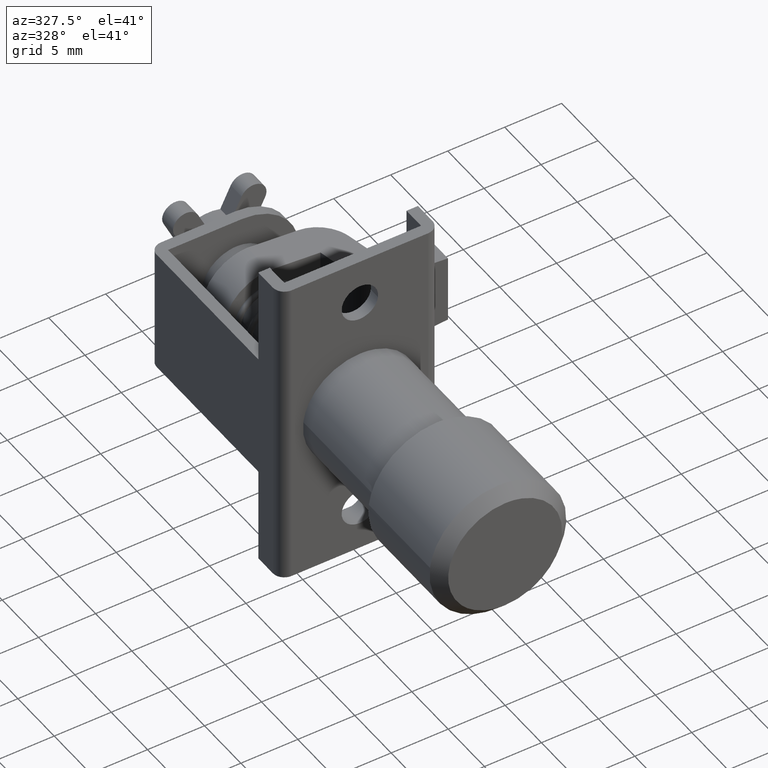
[diagram: clean part render]
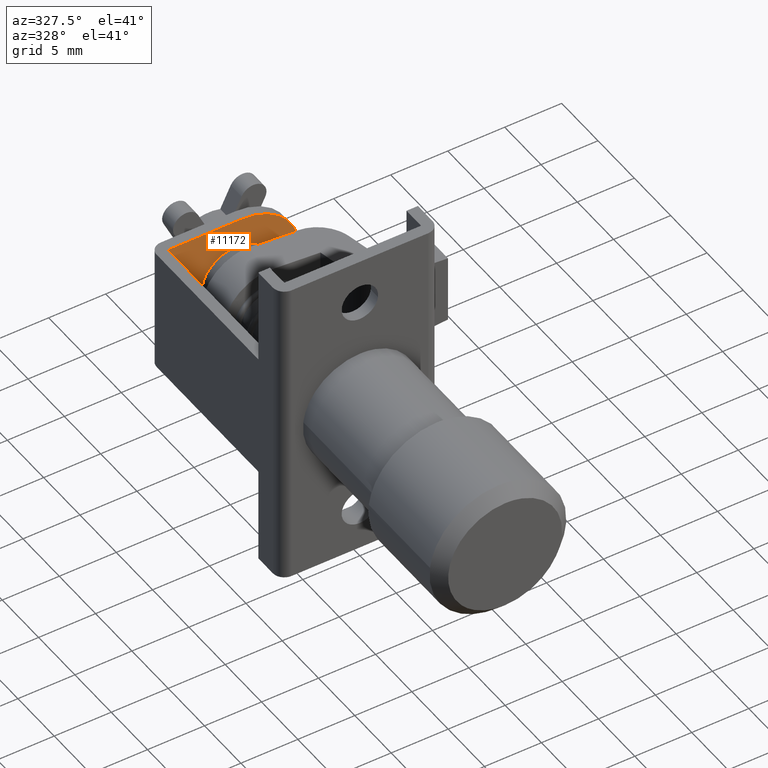
[diagram: same view with one face highlighted and labeled with its STEP entity id]
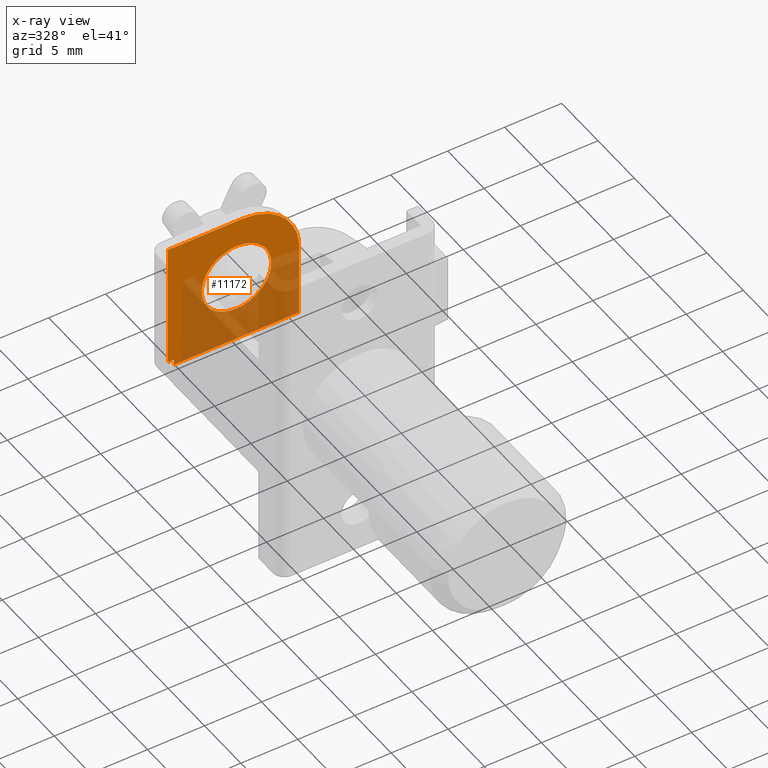
[diagram: x-ray of the same camera — body ghosted, the highlighted face saturated]
A machine part, auxiliary view. The second image highlights one B-rep face of the part: STEP entity #11172.
The next image is the same camera in x-ray: the body ghosted, the highlighted face saturated — about 52% of this face is hidden behind the body in this view.
In plain terms, the highlighted face is a freeform B-spline surface patch.
Its self-contained STEP definition (entity closure, byte-faithful):
#9423=CARTESIAN_POINT('',(17.0,-3.040598025941486,0.239298233668114));
#9424=VERTEX_POINT('',#9423);
#9430=CARTESIAN_POINT('',(17.0,0.0,3.050000000000000));
#9431=VERTEX_POINT('',#9430);
#9432=CARTESIAN_POINT('',(17.0,0.0,3.050000000000000));
#9433=CARTESIAN_POINT('',(17.0,-2.819392867511911,3.050000000000001));
#9434=CARTESIAN_POINT('',(16.999999999999996,-3.040598025941485,0.239298233668114));
#9442=(BOUNDED_CURVE()B_SPLINE_CURVE(2,(#9432,#9433,#9434),.UNSPECIFIED.,.F.,.U.)B_SPLINE_CURVE_WITH_KNOTS((3,3),(0.0,0.236331413857913),.UNSPECIFIED.)CURVE()GEOMETRIC_REPRESENTATION_ITEM()RATIONAL_B_SPLINE_CURVE((1.0,0.723120525953686,0.969723592464178))REPRESENTATION_ITEM(''));
#9443=EDGE_CURVE('',#9431,#9424,#9442,.T.);
#9445=CARTESIAN_POINT('',(17.0,3.040598025941486,-0.239298233668115));
#9446=VERTEX_POINT('',#9445);
#9447=CARTESIAN_POINT('',(17.0,3.040598025941485,-0.239298233668115));
#9448=CARTESIAN_POINT('',(17.000000000000004,3.050000000000001,-0.119833817562604));
#9449=CARTESIAN_POINT('',(17.0,3.050000000000000,0.0));
#9450=CARTESIAN_POINT('',(17.000000000000007,3.050000000000001,3.050000000000001));
#9451=CARTESIAN_POINT('',(17.0,0.0,3.050000000000000));
#9459=(BOUNDED_CURVE()B_SPLINE_CURVE(2,(#9447,#9448,#9449,#9450,#9451),.UNSPECIFIED.,.F.,.U.)B_SPLINE_CURVE_WITH_KNOTS((3,2,3),(0.736331413857913,0.750000000000000,1.0),.UNSPECIFIED.)CURVE()GEOMETRIC_REPRESENTATION_ITEM()RATIONAL_B_SPLINE_CURVE((0.969723592464178,0.983986255232861,1.0,0.707106781186547,1.0))REPRESENTATION_ITEM(''));
#9460=EDGE_CURVE('',#9446,#9431,#9459,.T.);
#9536=CARTESIAN_POINT('',(17.0,0.0,-3.050000000000000));
#9537=VERTEX_POINT('',#9536);
#9538=CARTESIAN_POINT('',(17.0,0.0,-3.050000000000000));
#9539=CARTESIAN_POINT('',(17.0,2.819392867511910,-3.050000000000000));
#9540=CARTESIAN_POINT('',(17.0,3.040598025941485,-0.239298233668115));
#9548=(BOUNDED_CURVE()B_SPLINE_CURVE(2,(#9538,#9539,#9540),.UNSPECIFIED.,.F.,.U.)B_SPLINE_CURVE_WITH_KNOTS((3,3),(0.500000000000000,0.736331413857913),.UNSPECIFIED.)CURVE()GEOMETRIC_REPRESENTATION_ITEM()RATIONAL_B_SPLINE_CURVE((1.0,0.723120525953686,0.969723592464178))REPRESENTATION_ITEM(''));
#9549=EDGE_CURVE('',#9537,#9446,#9548,.T.);
#9551=CARTESIAN_POINT('',(16.999999999999996,-3.040598025941485,0.239298233668114));
#9552=CARTESIAN_POINT('',(17.000000000000004,-3.050000000000000,0.119833817562604));
#9553=CARTESIAN_POINT('',(17.0,-3.050000000000000,0.0));
#9554=CARTESIAN_POINT('',(17.000000000000007,-3.050000000000001,-3.050000000000001));
#9555=CARTESIAN_POINT('',(17.0,0.0,-3.050000000000000));
#9563=(BOUNDED_CURVE()B_SPLINE_CURVE(2,(#9551,#9552,#9553,#9554,#9555),.UNSPECIFIED.,.F.,.U.)B_SPLINE_CURVE_WITH_KNOTS((3,2,3),(0.236331413857913,0.250000000000000,0.500000000000000),.UNSPECIFIED.)CURVE()GEOMETRIC_REPRESENTATION_ITEM()RATIONAL_B_SPLINE_CURVE((0.969723592464178,0.983986255232861,1.0,0.707106781186547,1.0))REPRESENTATION_ITEM(''));
#9564=EDGE_CURVE('',#9424,#9537,#9563,.T.);
#10387=CARTESIAN_POINT('',(17.0,-0.500000000000000,5.500000000000000));
#10388=VERTEX_POINT('',#10387);
#10394=CARTESIAN_POINT('',(17.0,-5.500000000000000,0.500000000000000));
#10395=VERTEX_POINT('',#10394);
#10396=CARTESIAN_POINT('',(17.0,-0.500000000000000,5.500000000000000));
#10397=CARTESIAN_POINT('',(17.000000000000004,-5.500000000000001,5.500000000000001));
#10398=CARTESIAN_POINT('',(17.0,-5.500000000000000,0.500000000000000));
#10406=(BOUNDED_CURVE()B_SPLINE_CURVE(2,(#10396,#10397,#10398),.UNSPECIFIED.,.F.,.U.)CURVE()GEOMETRIC_REPRESENTATION_ITEM()QUASI_UNIFORM_CURVE()RATIONAL_B_SPLINE_CURVE((1.0,0.707106781186548,1.0))REPRESENTATION_ITEM(''));
#10407=EDGE_CURVE('',#10388,#10395,#10406,.T.);
#10562=CARTESIAN_POINT('',(17.0,6.0,5.500000000000000));
#10563=VERTEX_POINT('',#10562);
#10569=CARTESIAN_POINT('',(17.0,6.0,5.500000000000000));
#10570=CARTESIAN_POINT('',(17.0,-0.500000000000000,5.500000000000000));
#10571=QUASI_UNIFORM_CURVE('',1,(#10569,#10570),.UNSPECIFIED.,.F.,.U.);
#10572=EDGE_CURVE('',#10563,#10388,#10571,.T.);
#10985=CARTESIAN_POINT('',(17.0,6.0,-5.499999999999840));
#10986=VERTEX_POINT('',#10985);
#10992=CARTESIAN_POINT('',(17.0,6.0,-5.499999999999840));
#10993=CARTESIAN_POINT('',(17.0,6.0,5.500000000000000));
#10994=QUASI_UNIFORM_CURVE('',1,(#10992,#10993),.UNSPECIFIED.,.F.,.U.);
#10995=EDGE_CURVE('',#10986,#10563,#10994,.T.);
#11029=CARTESIAN_POINT('',(17.0,5.500000000000000,-5.499999999999869));
#11030=VERTEX_POINT('',#11029);
#11036=CARTESIAN_POINT('',(17.0,6.0,-5.499999999999840));
#11037=CARTESIAN_POINT('',(17.0,5.500000000000000,-5.499999999999869));
#11038=QUASI_UNIFORM_CURVE('',1,(#11036,#11037),.UNSPECIFIED.,.F.,.U.);
#11039=EDGE_CURVE('',#10986,#11030,#11038,.T.);
#11136=CARTESIAN_POINT('',(17.0,-6.074424977710769,-6.574424977710771));
#11137=CARTESIAN_POINT('',(17.0,-6.074424977710769,6.074425286164805));
#11138=CARTESIAN_POINT('',(17.0,6.574425286164807,-6.574424977710771));
#11139=CARTESIAN_POINT('',(17.0,6.574425286164807,6.074425286164805));
#11140=B_SPLINE_SURFACE_WITH_KNOTS('',1,1,((#11136,#11138),(#11137,#11139)),.UNSPECIFIED.,.F.,.F.,.U.,(2,2),(2,2),(0.0,12.648850263875580),(0.0,12.648850263875580),.UNSPECIFIED.);
#11141=CARTESIAN_POINT('',(17.0,-5.500000000000000,-6.0));
#11142=VERTEX_POINT('',#11141);
#11143=CARTESIAN_POINT('',(17.0,-5.500000000000000,-6.0));
#11144=CARTESIAN_POINT('',(17.0,-5.500000000000000,0.500000000000000));
#11145=QUASI_UNIFORM_CURVE('',1,(#11143,#11144),.UNSPECIFIED.,.F.,.U.);
#11146=EDGE_CURVE('',#11142,#10395,#11145,.T.);
#11147=ORIENTED_EDGE('',*,*,#11146,.T.);
#11148=ORIENTED_EDGE('',*,*,#10407,.F.);
#11149=ORIENTED_EDGE('',*,*,#10572,.F.);
#11150=ORIENTED_EDGE('',*,*,#10995,.F.);
#11151=ORIENTED_EDGE('',*,*,#11039,.T.);
#11152=CARTESIAN_POINT('',(17.0,5.500000000000000,-6.0));
#11153=VERTEX_POINT('',#11152);
#11154=CARTESIAN_POINT('',(17.0,5.500000000000000,-5.499999999999869));
#11155=CARTESIAN_POINT('',(17.0,5.500000000000000,-6.0));
#11156=QUASI_UNIFORM_CURVE('',1,(#11154,#11155),.UNSPECIFIED.,.F.,.U.);
#11157=EDGE_CURVE('',#11030,#11153,#11156,.T.);
#11158=ORIENTED_EDGE('',*,*,#11157,.T.);
#11159=CARTESIAN_POINT('',(17.0,-5.500000000000000,-6.0));
#11160=CARTESIAN_POINT('',(17.0,5.500000000000000,-6.0));
#11161=QUASI_UNIFORM_CURVE('',1,(#11159,#11160),.UNSPECIFIED.,.F.,.U.);
#11162=EDGE_CURVE('',#11142,#11153,#11161,.T.);
#11163=ORIENTED_EDGE('',*,*,#11162,.F.);
#11164=EDGE_LOOP('',(#11147,#11148,#11149,#11150,#11151,#11158,#11163));
#11165=FACE_OUTER_BOUND('',#11164,.T.);
#11166=ORIENTED_EDGE('',*,*,#9549,.T.);
#11167=ORIENTED_EDGE('',*,*,#9460,.T.);
#11168=ORIENTED_EDGE('',*,*,#9443,.T.);
#11169=ORIENTED_EDGE('',*,*,#9564,.T.);
#11170=EDGE_LOOP('',(#11166,#11167,#11168,#11169));
#11171=FACE_BOUND('',#11170,.T.);
#11172=ADVANCED_FACE('',(#11165,#11171),#11140,.T.);